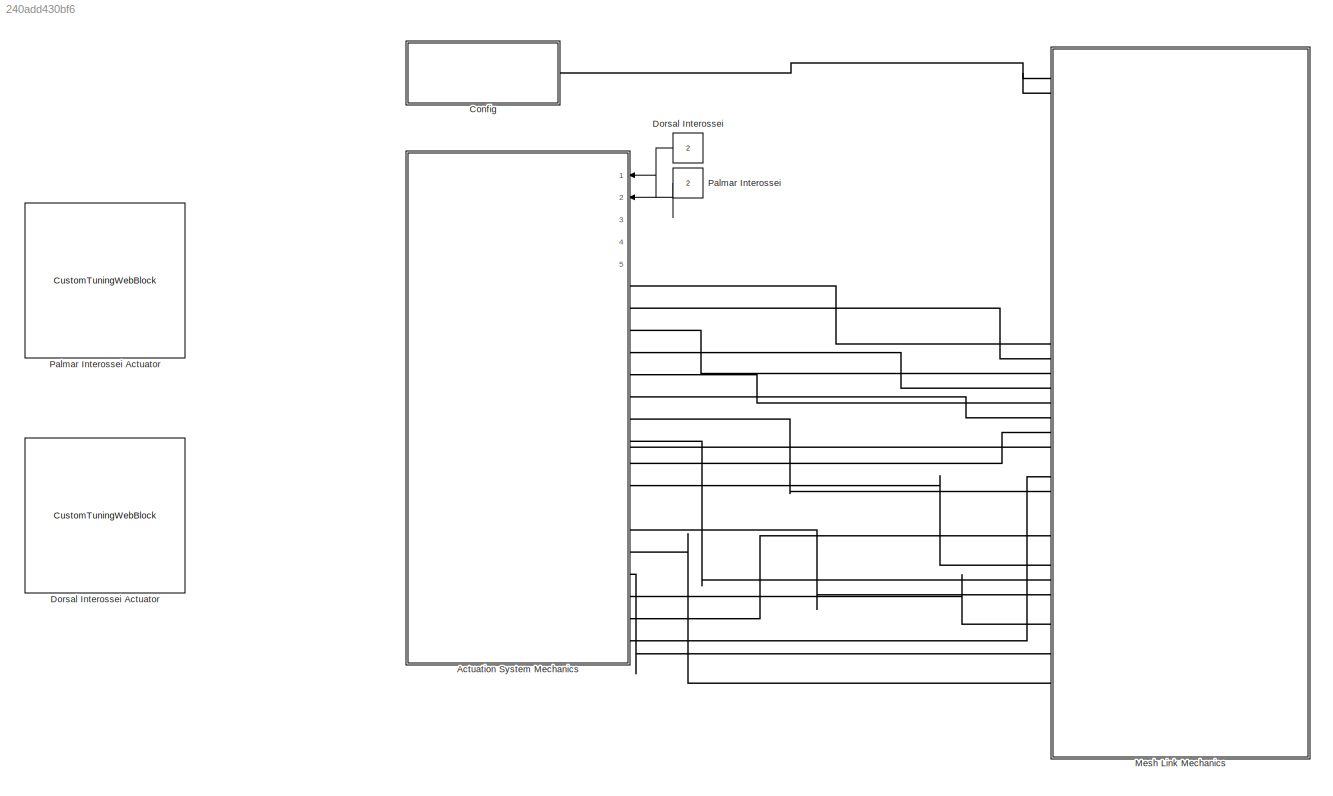
MODEL slx_240add430bf6
KIND model
CONFIG AbsTol = auto
CONFIG EnableMultiTasking = off
CONFIG FixedStep = auto
CONFIG MaxStep = auto
CONFIG MinStep = auto
CONFIG RelTol = 1e-3
CONFIG SampleTimeConstraint = Unconstrained
CONFIG SolverName = VariableStepAuto
CONFIG StartTime = 0.0
CONFIG StopTime = 10.0
BLOCK [SubSystem] Actuation System Mechanics
  Ports = [5, 0, 0, 0, 0, 17]
  ReferencedSubsystem = test_actuation_system
  RequestExecContextInheritance = off
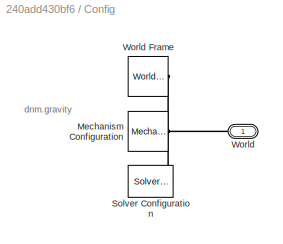
BLOCK [SubSystem] Config
  Ports = [0, 0, 0, 0, 0, 1]
  RequestExecContextInheritance = off
BLOCK [Reference] Config/Mechanism Configuration  REF=sm_lib/Utilities/Mechanism
Configuration
  Ports = [0, 0, 0, 0, 0, 0, 1]
  SourceBlock = sm_lib/Utilities/Mechanism\nConfiguration
  SourceProductBaseCode = MS
  SourceType = Mechanism\nConfiguration
BLOCK [Reference] Config/Solver Configuration  REF=nesl_utility/Solver
Configuration
  Ports = [0, 0, 0, 0, 0, 0, 1]
  SourceBlock = nesl_utility/Solver\nConfiguration
  SourceProductBaseCode = PW,SS
  SourceType = Solver\nConfiguration
BLOCK [PMIOPort] Config/World
  Side = Left
BLOCK [Reference] Config/World Frame  REF=sm_lib/Frames and
Transforms/World Frame
  Ports = [0, 0, 0, 0, 0, 0, 1]
  SourceBlock = sm_lib/Frames and\nTransforms/World Frame
  SourceProductBaseCode = MS
  SourceType = World Frame
BLOCK [Constant] Dorsal Interossei
  NameLocation = right
  Value = 2
BLOCK [CustomTuningWebBlock] Dorsal Interossei Actuator
  Configuration = {"components":[{"name":"CircularScaleComponent","settings":{"bounds":{"max":100,"min":0,"tickInterval":"auto"},"direction":"cw","flipLimits":0,"innerRadius":0.6636618227670849,"internalTickHeightScaleFactor":1,"labelColor":[255,255,200],"labelFont":{"font":"Arial","fontSize":12},"labelTransparency":1,"minorTickHeightScaleFactor":0.2,"needleImage":{"size":[152,152],"src":"data:image\/svg+xml;base64...<+42667ch>
  LabelPosition = Hide
  ShowInitialText = on
BLOCK [SubSystem] Mesh Link Mechanics
  Ports = [0, 0, 0, 0, 0, 47, 2]
  ReferencedSubsystem = mechanics_model
  RequestExecContextInheritance = off
BLOCK [Constant] Palmar Interossei
  NameLocation = right
  Value = 2
BLOCK [CustomTuningWebBlock] Palmar Interossei Actuator
  Configuration = {"components":[{"name":"CircularScaleComponent","settings":{"bounds":{"max":100,"min":0,"tickInterval":"auto"},"direction":"cw","flipLimits":0,"innerRadius":0.6636618227670849,"internalTickHeightScaleFactor":1,"labelColor":[255,255,200],"labelFont":{"font":"Arial","fontSize":12},"labelTransparency":1,"minorTickHeightScaleFactor":0.2,"needleImage":{"size":[152,152],"src":"data:image\/svg+xml;base64...<+42667ch>
  LabelPosition = Hide
  ShowInitialText = on
ANNOTATION Config: dnm.gravity
LINE Dorsal Interossei:1 -> Actuation System Mechanics:1
LINE Palmar Interossei:1 -> Actuation System Mechanics:2
PLINE Actuation System Mechanics:LConn1 -- Mesh Link Mechanics:LConn20
PLINE Actuation System Mechanics:LConn10 -- Mesh Link Mechanics:LConn35
PLINE Actuation System Mechanics:LConn11 -- Mesh Link Mechanics:LConn27
PLINE Actuation System Mechanics:LConn12 -- Mesh Link Mechanics:LConn37
PLINE Actuation System Mechanics:LConn13 -- Mesh Link Mechanics:LConn43
PLINE Actuation System Mechanics:LConn14 -- Mesh Link Mechanics:LConn41
PLINE Actuation System Mechanics:LConn15 -- Mesh Link Mechanics:LConn39
PLINE Actuation System Mechanics:LConn16 -- Mesh Link Mechanics:LConn33
PLINE Actuation System Mechanics:LConn17 -- Mesh Link Mechanics:LConn29
PLINE Actuation System Mechanics:LConn2 -- Mesh Link Mechanics:LConn21
PLINE Actuation System Mechanics:LConn3 -- Mesh Link Mechanics:LConn22
PLINE Actuation System Mechanics:LConn4 -- Mesh Link Mechanics:LConn23
PLINE Actuation System Mechanics:LConn5 -- Mesh Link Mechanics:LConn24
PLINE Actuation System Mechanics:LConn6 -- Mesh Link Mechanics:LConn25
PLINE Actuation System Mechanics:LConn7 -- Mesh Link Mechanics:LConn30
PLINE Actuation System Mechanics:LConn8 -- Mesh Link Mechanics:LConn36
PLINE Actuation System Mechanics:LConn9 -- Mesh Link Mechanics:LConn26
PNET net1: Config/Mechanism Configuration:RConn1 -- Config/Solver Configuration:RConn1 -- Config/World Frame:RConn1 -- Config/World:RConn1
PNET net2: Config:LConn1 -- Mesh Link Mechanics:LConn2 -- Mesh Link Mechanics:LConn3
note: PNET lines group multi-terminal physical nets as a canonical sorted terminal list (undirected conserving connections); 2-terminal nets keep the pairwise PLINE form
